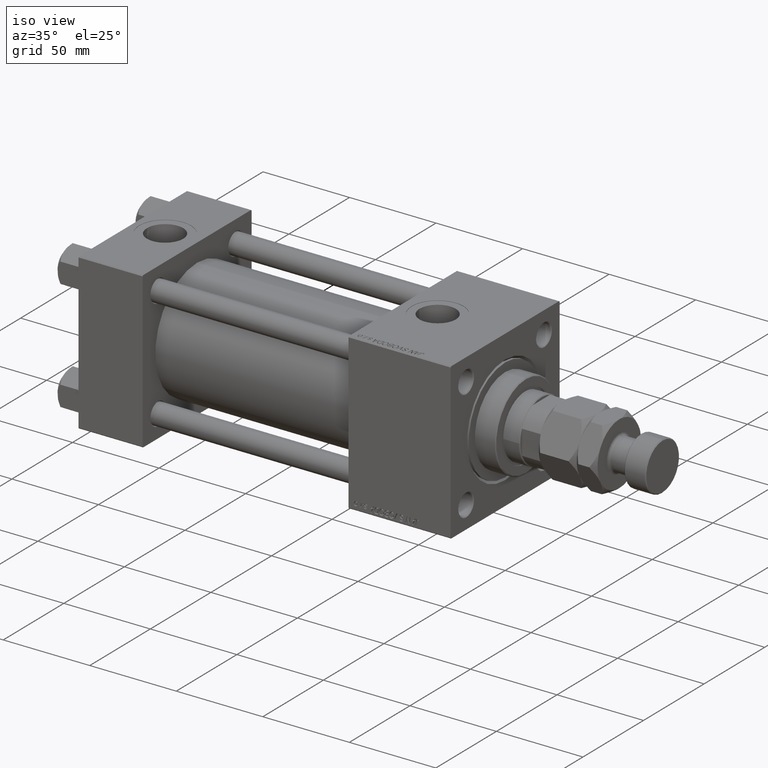
[diagram: clean part render]
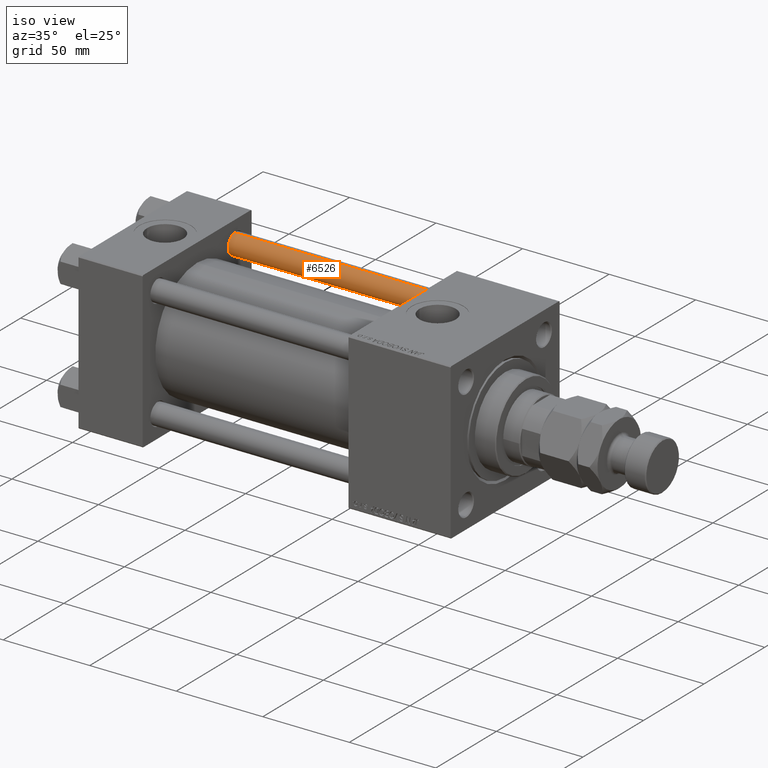
[diagram: same view with one face highlighted and labeled with its STEP entity id]
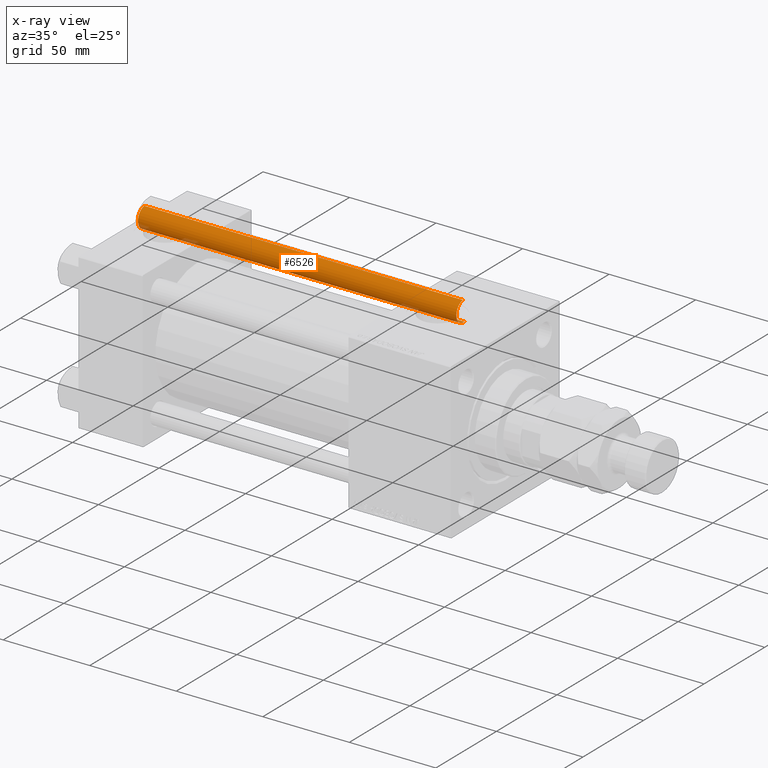
[diagram: x-ray of the same camera — body ghosted, the highlighted face saturated]
A machine part, iso view. The second image highlights one B-rep face of the part: STEP entity #6526.
The next image is the same camera in x-ray: the body ghosted, the highlighted face saturated — about 2% of this face is hidden behind the body in this view.
In plain terms, the highlighted cylindrical surface (edge-blend (fillet) strip) has radius 6 mm, axis along (-1, 0, 0).
Its self-contained STEP definition (entity closure, byte-faithful):
#279 = DIRECTION ( 'NONE',  ( 1.000000000000000000, 0.000000000000000000, 0.000000000000000000 ) ) ;
#2576 = CARTESIAN_POINT ( 'NONE',  ( 6.000000000000000888, 7.347880794884120722E-16, 185.0000000000000000 ) ) ;
#3157 = CIRCLE ( 'NONE', #43447, 6.000000000000000888 ) ;
#3815 = DIRECTION ( 'NONE',  ( 1.000000000000000000, 0.000000000000000000, 0.000000000000000000 ) ) ;
#3935 = CARTESIAN_POINT ( 'NONE',  ( 6.000000000000000888, 7.347880794884120722E-16, 184.5000000000000000 ) ) ;
#6526 = ADVANCED_FACE ( 'NONE', ( #34434 ), #31261, .T. ) ;
#6701 = DIRECTION ( 'NONE',  ( -0.000000000000000000, -0.000000000000000000, -1.000000000000000000 ) ) ;
#6795 = EDGE_CURVE ( 'NONE', #14951, #21262, #22034, .T. ) ;
#8163 = ORIENTED_EDGE ( 'NONE', *, *, #46818, .T. ) ;
#9248 = ORIENTED_EDGE ( 'NONE', *, *, #6795, .F. ) ;
#10002 = CARTESIAN_POINT ( 'NONE',  ( 0.000000000000000000, 0.000000000000000000, 185.0000000000000000 ) ) ;
#13821 = CARTESIAN_POINT ( 'NONE',  ( -6.000000000000000888, 0.000000000000000000, 184.5000000000000000 ) ) ;
#14951 = VERTEX_POINT ( 'NONE', #3935 ) ;
#15586 = EDGE_LOOP ( 'NONE', ( #9248, #8163, #36774, #48426 ) ) ;
#21262 = VERTEX_POINT ( 'NONE', #30242 ) ;
#21736 = AXIS2_PLACEMENT_3D ( 'NONE', #25876, #37962, #279 ) ;
#22034 = LINE ( 'NONE', #2576, #40355 ) ;
#25500 = VERTEX_POINT ( 'NONE', #13821 ) ;
#25876 = CARTESIAN_POINT ( 'NONE',  ( 0.000000000000000000, 0.000000000000000000, 0.5000000000000281997 ) ) ;
#26548 = DIRECTION ( 'NONE',  ( -0.000000000000000000, -0.000000000000000000, -1.000000000000000000 ) ) ;
#27696 = LINE ( 'NONE', #35068, #29102 ) ;
#29102 = VECTOR ( 'NONE', #6701, 1000.000000000000000 ) ;
#29745 = EDGE_CURVE ( 'NONE', #25500, #30837, #27696, .T. ) ;
#30242 = CARTESIAN_POINT ( 'NONE',  ( 6.000000000000000888, 7.347880794884120722E-16, 0.5000000000000281997 ) ) ;
#30837 = VERTEX_POINT ( 'NONE', #46320 ) ;
#31261 = CYLINDRICAL_SURFACE ( 'NONE', #36977, 6.000000000000000888 ) ;
#31423 = CARTESIAN_POINT ( 'NONE',  ( 0.000000000000000000, 0.000000000000000000, 184.5000000000000000 ) ) ;
#34434 = FACE_OUTER_BOUND ( 'NONE', #15586, .T. ) ;
#35068 = CARTESIAN_POINT ( 'NONE',  ( -6.000000000000000888, 0.000000000000000000, 185.0000000000000000 ) ) ;
#36774 = ORIENTED_EDGE ( 'NONE', *, *, #29745, .T. ) ;
#36977 = AXIS2_PLACEMENT_3D ( 'NONE', #10002, #26548, #42577 ) ;
#37962 = DIRECTION ( 'NONE',  ( -0.000000000000000000, -0.000000000000000000, 1.000000000000000000 ) ) ;
#38054 = DIRECTION ( 'NONE',  ( -0.000000000000000000, -0.000000000000000000, -1.000000000000000000 ) ) ;
#39821 = DIRECTION ( 'NONE',  ( 0.000000000000000000, 0.000000000000000000, -1.000000000000000000 ) ) ;
#40355 = VECTOR ( 'NONE', #38054, 1000.000000000000000 ) ;
#42577 = DIRECTION ( 'NONE',  ( -1.000000000000000000, 0.000000000000000000, 0.000000000000000000 ) ) ;
#43447 = AXIS2_PLACEMENT_3D ( 'NONE', #31423, #39821, #3815 ) ;
#45237 = CIRCLE ( 'NONE', #21736, 6.000000000000000888 ) ;
#46320 = CARTESIAN_POINT ( 'NONE',  ( -6.000000000000000888, 0.000000000000000000, 0.5000000000000281997 ) ) ;
#46818 = EDGE_CURVE ( 'NONE', #14951, #25500, #3157, .T. ) ;
#48426 = ORIENTED_EDGE ( 'NONE', *, *, #49658, .T. ) ;
#49658 = EDGE_CURVE ( 'NONE', #30837, #21262, #45237, .T. ) ;